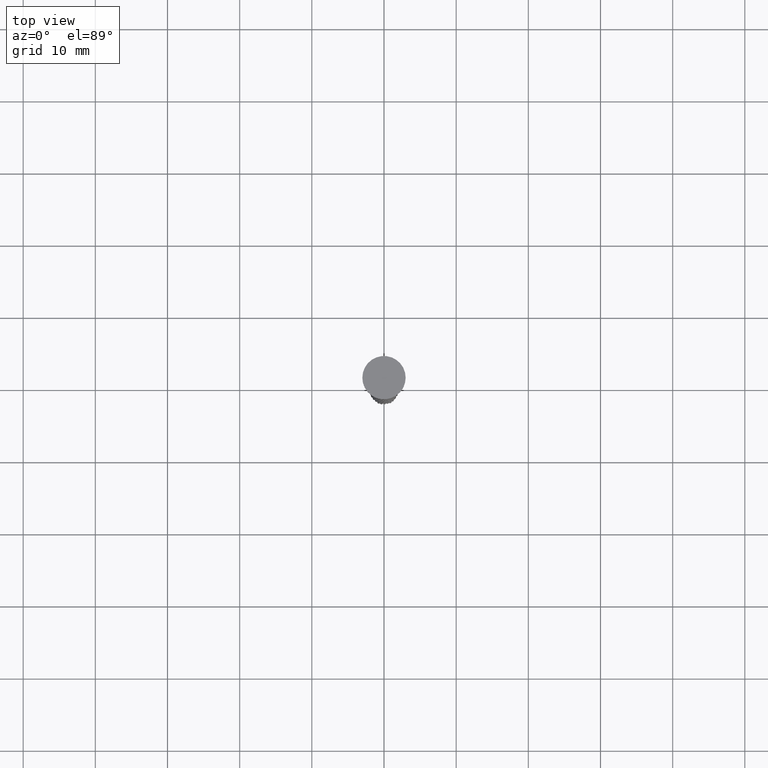
[diagram: clean part render]
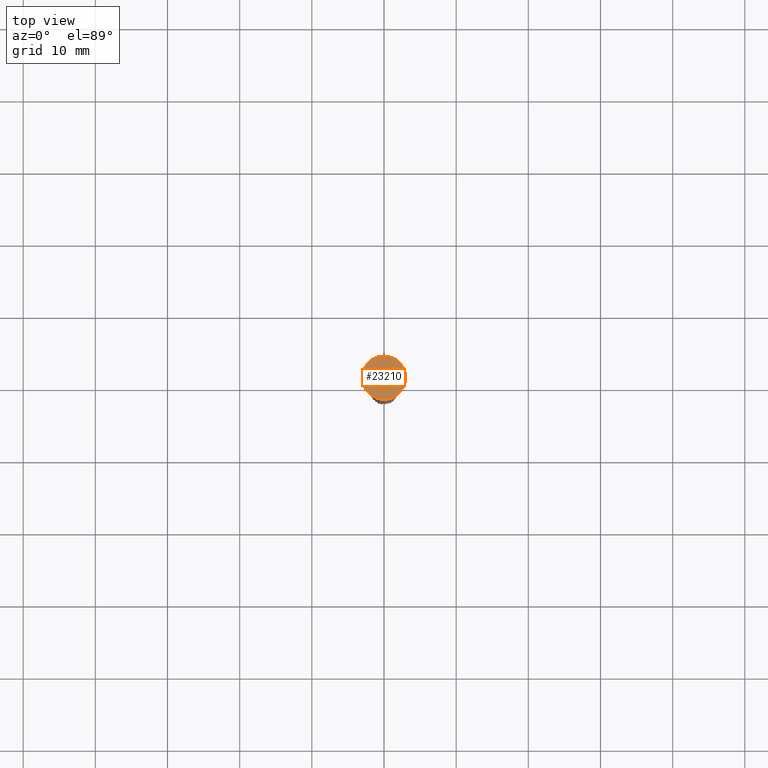
[diagram: same view with one face highlighted and labeled with its STEP entity id]
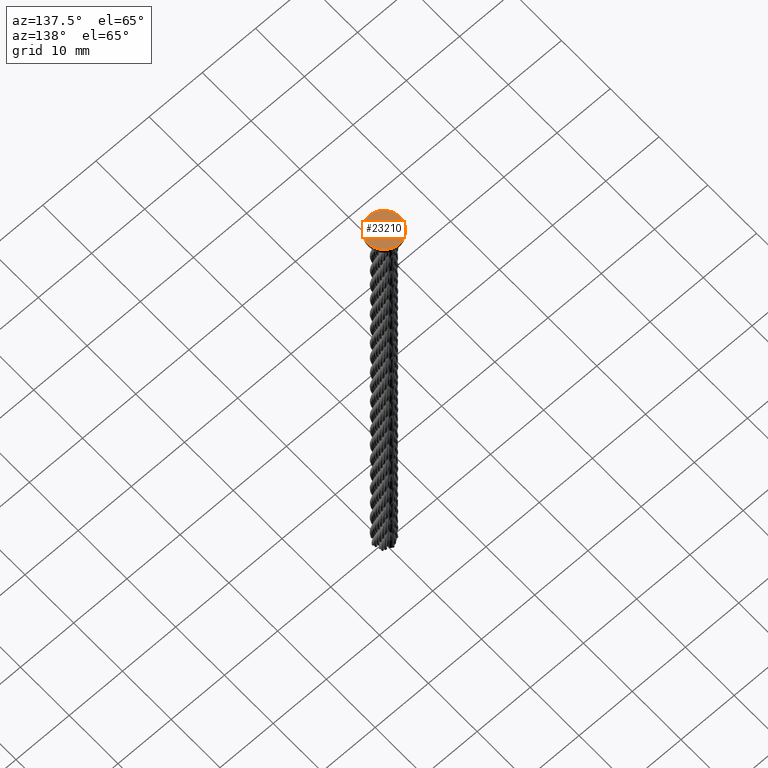
[diagram: same view with one face highlighted and labeled with its STEP entity id]
A machine part, top view. The second image highlights one B-rep face of the part: STEP entity #23210.
A second angle (auxiliary view) of the same face is appended — the face is thin or edge-on in the first view.
In plain terms, the highlighted planar face has unit normal (0, 0, 1).
Its self-contained STEP definition (entity closure, byte-faithful):
#2826 = EDGE_CURVE ( 'NONE', #29694, #29694, #13016, .T. ) ;
#4285 = AXIS2_PLACEMENT_3D ( 'NONE', #34414, #12682, #23397 ) ;
#8944 = CARTESIAN_POINT ( 'NONE',  ( 3.000000000000000444, 0.000000000000000000, 1.000000000000000000 ) ) ;
#11069 = CARTESIAN_POINT ( 'NONE',  ( 0.000000000000000000, 0.000000000000000000, 1.000000000000000000 ) ) ;
#12682 = DIRECTION ( 'NONE',  ( 0.000000000000000000, 0.000000000000000000, 1.000000000000000000 ) ) ;
#13016 = CIRCLE ( 'NONE', #14927, 3.000000000000000444 ) ;
#14290 = DIRECTION ( 'NONE',  ( 1.000000000000000000, 0.000000000000000000, 0.000000000000000000 ) ) ;
#14927 = AXIS2_PLACEMENT_3D ( 'NONE', #11069, #40317, #14290 ) ;
#19784 = EDGE_LOOP ( 'NONE', ( #41983 ) ) ;
#23210 = ADVANCED_FACE ( 'NONE', ( #44650 ), #34569, .T. ) ;
#23397 = DIRECTION ( 'NONE',  ( 1.000000000000000000, 0.000000000000000000, -0.000000000000000000 ) ) ;
#29694 = VERTEX_POINT ( 'NONE', #8944 ) ;
#34414 = CARTESIAN_POINT ( 'NONE',  ( 0.000000000000000000, 0.000000000000000000, 1.000000000000000000 ) ) ;
#34569 = PLANE ( 'NONE',  #4285 ) ;
#40317 = DIRECTION ( 'NONE',  ( 0.000000000000000000, 0.000000000000000000, 1.000000000000000000 ) ) ;
#41983 = ORIENTED_EDGE ( 'NONE', *, *, #2826, .T. ) ;
#44650 = FACE_OUTER_BOUND ( 'NONE', #19784, .T. ) ;